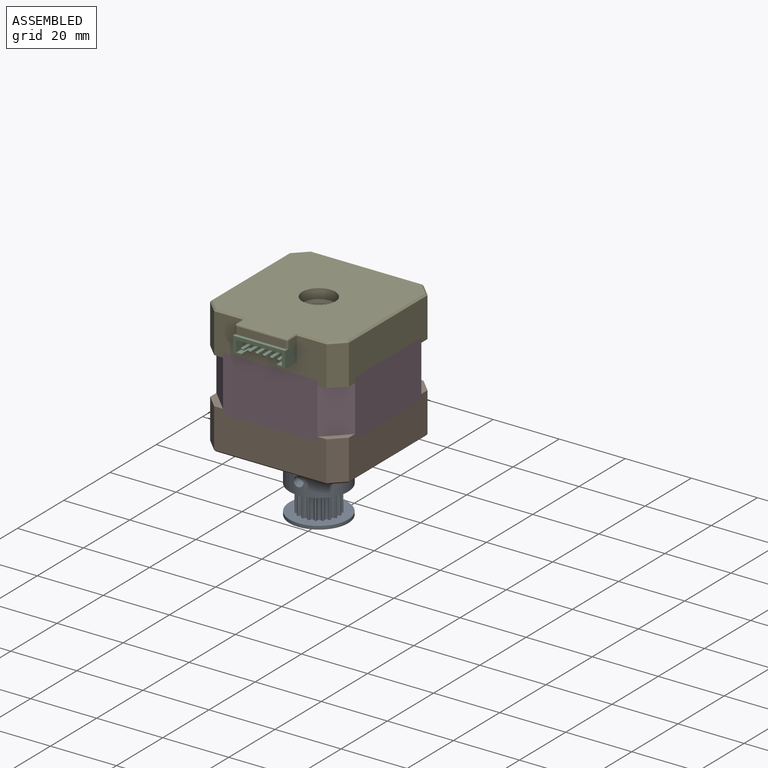
[diagram: assembled view]
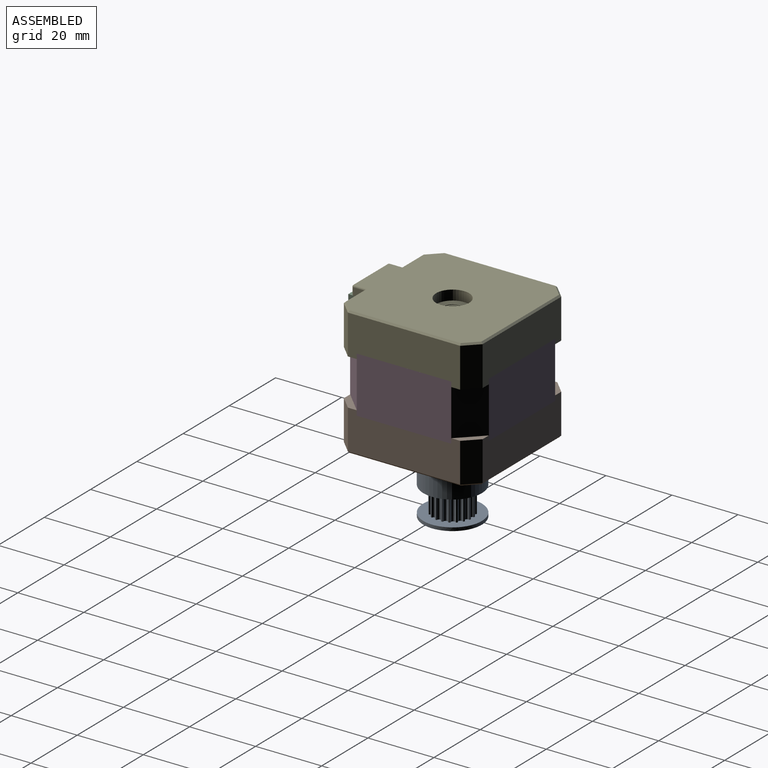
[diagram: assembled view, second angle]
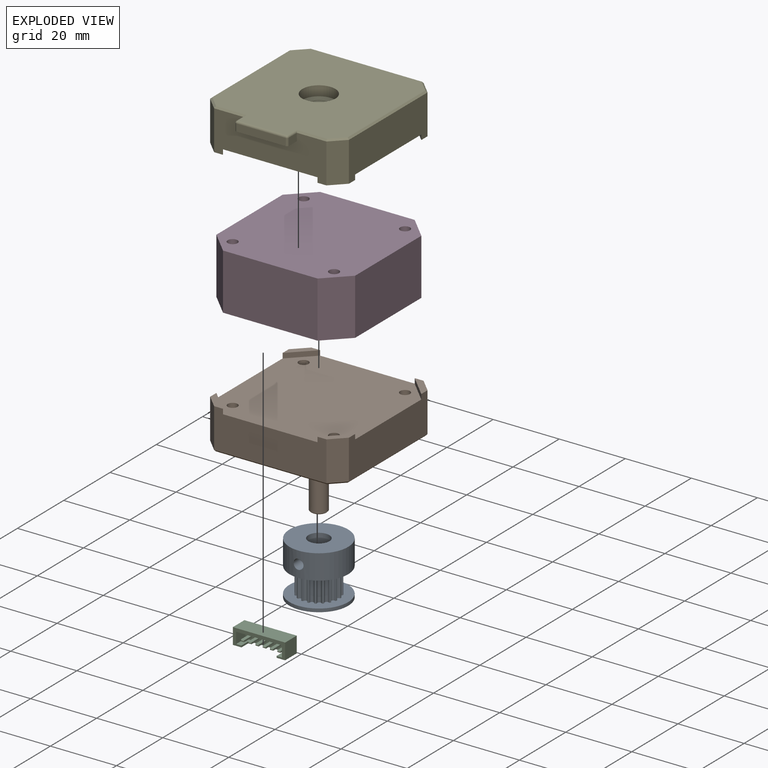
[diagram: exploded view]
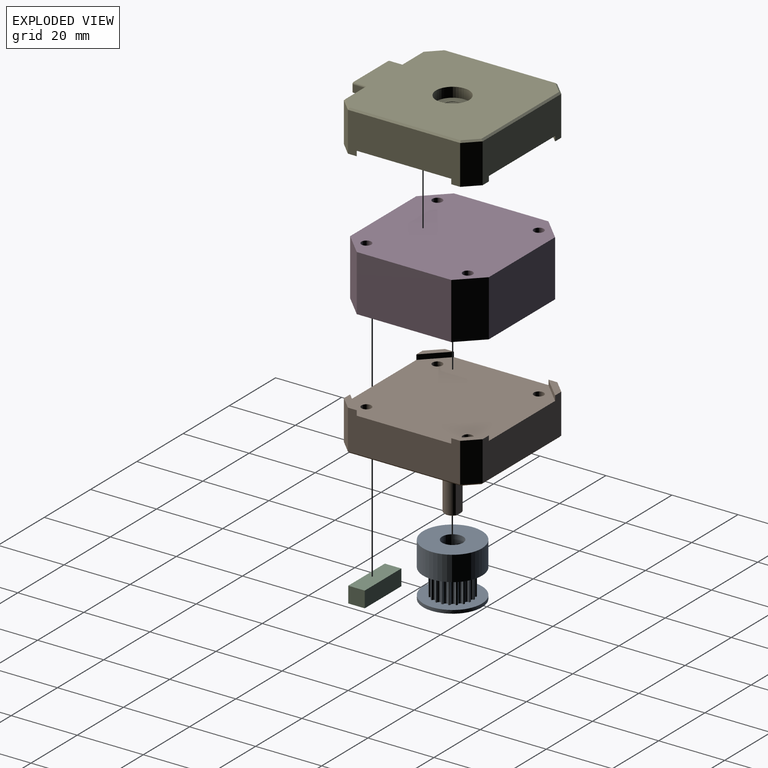
[diagram: exploded view, second angle]
ASSEMBLY  parts=5 mates=11
PART A: 129 faces, bbox 17.8x17.8x16.1 mm
  f0: plane 17.78x17.78mm, normal (0,0,1), area 216.6mm2, adj f1,f32
  f1: cylinder r=3.17mm len=16.13mm, axis (0,0,-1), area 307.2mm2, adj f0,f2,f3,f33
  f2: cylinder r=1.5mm len=6.09mm, axis (0,-1,0), area 55mm2, adj f1,f32
  f3: plane 17.78x17.78mm, normal (0,0,-1), area 216.6mm2, adj f1,f4
  f4: cylinder r=8.89mm len=17.78mm, axis (0,0,-1), area 56.8mm2, adj f3,f5
  f5: plane 17.78x17.78mm, normal (0,0,1), area 148.3mm2, adj f4,f6,f7,f8,f9,f10,f11,f12
  f6: cylinder r=6.08mm len=7.62mm, axis (0,0,-1), area 3.3mm2, adj f5,f26,f31,f43
  f7: cylinder r=6.08mm len=7.62mm, axis (0,0,-1), area 3.3mm2, adj f5,f30,f31,f44
  f8: cylinder r=6.08mm len=7.62mm, axis (0,0,-1), area 3.3mm2, adj f5,f31,f48,f49
  f9: cylinder r=6.08mm len=7.62mm, axis (0,0,-1), area 3.3mm2, adj f5,f31,f53,f54
  f10: cylinder r=6.08mm len=7.62mm, axis (0,0,-1), area 3.3mm2, adj f5,f31,f58,f59
  f11: cylinder r=6.08mm len=7.62mm, axis (0,0,-1), area 3.3mm2, adj f5,f31,f63,f64
  f12: cylinder r=6.08mm len=7.62mm, axis (0,0,-1), area 3.3mm2, adj f5,f31,f68,f69
  f13: cylinder r=6.08mm len=7.62mm, axis (0,0,-1), area 3.3mm2, adj f5,f31,f73,f74
  f14: cylinder r=6.08mm len=7.62mm, axis (0,0,-1), area 3.3mm2, adj f5,f31,f78,f79
  f15: cylinder r=6.08mm len=7.62mm, axis (0,0,-1), area 3.3mm2, adj f5,f31,f83,f84
  f16: cylinder r=6.08mm len=7.62mm, axis (0,0,-1), area 3.3mm2, adj f5,f31,f88,f89
  f17: cylinder r=6.08mm len=7.62mm, axis (0,0,-1), area 3.3mm2, adj f5,f31,f93,f94
  f18: cylinder r=6.08mm len=7.62mm, axis (0,0,-1), area 3.3mm2, adj f5,f31,f98,f99
  f19: cylinder r=6.08mm len=7.62mm, axis (0,0,-1), area 3.3mm2, adj f5,f31,f103,f104
  f20: cylinder r=6.08mm len=7.62mm, axis (0,0,-1), area 3.3mm2, adj f5,f31,f108,f109
  f21: cylinder r=6.08mm len=7.62mm, axis (0,0,-1), area 3.3mm2, adj f5,f31,f113,f114
  f22: cylinder r=6.08mm len=7.62mm, axis (0,0,-1), area 3.3mm2, adj f5,f31,f118,f119
  f23: cylinder r=6.08mm len=7.62mm, axis (0,0,-1), area 3.3mm2, adj f5,f31,f123,f124
  f24: cylinder r=6.08mm len=7.62mm, axis (0,0,-1), area 3.3mm2, adj f5,f31,f38,f39
  f25: cylinder r=6.08mm len=7.62mm, axis (0,0,-1), area 3.3mm2, adj f5,f31,f34,f128
  f26: cylinder r=0.23mm len=7.62mm, axis (0,0,1), area 0.8mm2, adj f5,f6,f27,f31
  f27: cylinder r=0.66mm len=7.62mm, axis (0,0,1), area 1.5mm2, adj f5,f26,f28,f31
  f28: cylinder r=0.61mm len=7.62mm, axis (0,0,1), area 12.6mm2, adj f5,f27,f29,f31
  f29: cylinder r=0.66mm len=7.62mm, axis (0,0,1), area 1.5mm2, adj f5,f28,f30,f31
  f30: cylinder r=0.23mm len=7.62mm, axis (0,0,1), area 0.8mm2, adj f5,f7,f29,f31
  f31: plane 17.78x17.78mm, normal (0,0,-1), area 148.3mm2, adj f6,f7,f8,f9,f10,f11,f12,f13
  f32: cylinder r=8.89mm len=17.78mm, axis (0,0,-1), area 404.4mm2, adj f0,f2,f31,f33
  f33: cylinder r=1.5mm len=6.09mm, axis (-1,0,0), area 55mm2, adj f1,f32
  f34: cylinder r=0.23mm len=7.62mm, axis (0,0,1), area 0.8mm2, adj f5,f25,f31,f35
  f35: cylinder r=0.66mm len=7.62mm, axis (0,0,1), area 1.5mm2, adj f5,f31,f34,f36
  f36: cylinder r=0.61mm len=7.62mm, axis (0,0,1), area 12.6mm2, adj f5,f31,f35,f37
  f37: cylinder r=0.66mm len=7.62mm, axis (0,0,1), area 1.5mm2, adj f5,f31,f36,f38
  f38: cylinder r=0.23mm len=7.62mm, axis (0,0,1), area 0.8mm2, adj f5,f24,f31,f37
  f39: cylinder r=0.23mm len=7.62mm, axis (0,0,1), area 0.8mm2, adj f5,f24,f31,f40
  f40: cylinder r=0.66mm len=7.62mm, axis (0,0,1), area 1.5mm2, adj f5,f31,f39,f41
  f41: cylinder r=0.61mm len=7.62mm, axis (0,0,1), area 12.6mm2, adj f5,f31,f40,f42
  f42: cylinder r=0.66mm len=7.62mm, axis (0,0,1), area 1.5mm2, adj f5,f31,f41,f43
  f43: cylinder r=0.23mm len=7.62mm, axis (0,0,1), area 0.8mm2, adj f5,f6,f31,f42
  f44: cylinder r=0.23mm len=7.62mm, axis (0,0,1), area 0.8mm2, adj f5,f7,f31,f45
  f45: cylinder r=0.66mm len=7.62mm, axis (0,0,1), area 1.5mm2, adj f5,f31,f44,f46
  f46: cylinder r=0.61mm len=7.62mm, axis (0,0,1), area 12.6mm2, adj f5,f31,f45,f47
  f47: cylinder r=0.66mm len=7.62mm, axis (0,0,1), area 1.5mm2, adj f5,f31,f46,f48
  f48: cylinder r=0.23mm len=7.62mm, axis (0,0,1), area 0.8mm2, adj f5,f8,f31,f47
  f49: cylinder r=0.23mm len=7.62mm, axis (0,0,1), area 0.8mm2, adj f5,f8,f31,f50
  f50: cylinder r=0.66mm len=7.62mm, axis (0,0,1), area 1.5mm2, adj f5,f31,f49,f51
  f51: cylinder r=0.61mm len=7.62mm, axis (0,0,1), area 12.6mm2, adj f5,f31,f50,f52
  f52: cylinder r=0.66mm len=7.62mm, axis (0,0,1), area 1.5mm2, adj f5,f31,f51,f53
  f53: cylinder r=0.23mm len=7.62mm, axis (0,0,1), area 0.8mm2, adj f5,f9,f31,f52
  f54: cylinder r=0.23mm len=7.62mm, axis (0,0,1), area 0.8mm2, adj f5,f9,f31,f55
  f55: cylinder r=0.66mm len=7.62mm, axis (0,0,1), area 1.5mm2, adj f5,f31,f54,f56
  f56: cylinder r=0.61mm len=7.62mm, axis (0,0,1), area 12.6mm2, adj f5,f31,f55,f57
  f57: cylinder r=0.66mm len=7.62mm, axis (0,0,1), area 1.5mm2, adj f5,f31,f56,f58
  f58: cylinder r=0.23mm len=7.62mm, axis (0,0,1), area 0.8mm2, adj f5,f10,f31,f57
  f59: cylinder r=0.23mm len=7.62mm, axis (0,0,1), area 0.8mm2, adj f5,f10,f31,f60
  f60: cylinder r=0.66mm len=7.62mm, axis (0,0,1), area 1.5mm2, adj f5,f31,f59,f61
  f61: cylinder r=0.61mm len=7.62mm, axis (0,0,1), area 12.6mm2, adj f5,f31,f60,f62
  f62: cylinder r=0.66mm len=7.62mm, axis (0,0,1), area 1.5mm2, adj f5,f31,f61,f63
  f63: cylinder r=0.23mm len=7.62mm, axis (0,0,1), area 0.8mm2, adj f5,f11,f31,f62
  f64: cylinder r=0.23mm len=7.62mm, axis (0,0,1), area 0.8mm2, adj f5,f11,f31,f65
  f65: cylinder r=0.66mm len=7.62mm, axis (0,0,1), area 1.5mm2, adj f5,f31,f64,f66
  f66: cylinder r=0.61mm len=7.62mm, axis (0,0,1), area 12.6mm2, adj f5,f31,f65,f67
  f67: cylinder r=0.66mm len=7.62mm, axis (0,0,1), area 1.5mm2, adj f5,f31,f66,f68
  f68: cylinder r=0.23mm len=7.62mm, axis (0,0,1), area 0.8mm2, adj f5,f12,f31,f67
  f69: cylinder r=0.23mm len=7.62mm, axis (0,0,1), area 0.8mm2, adj f5,f12,f31,f70
  f70: cylinder r=0.66mm len=7.62mm, axis (0,0,1), area 1.5mm2, adj f5,f31,f69,f71
  f71: cylinder r=0.61mm len=7.62mm, axis (0,0,1), area 12.6mm2, adj f5,f31,f70,f72
  f72: cylinder r=0.66mm len=7.62mm, axis (0,0,1), area 1.5mm2, adj f5,f31,f71,f73
  f73: cylinder r=0.23mm len=7.62mm, axis (0,0,1), area 0.8mm2, adj f5,f13,f31,f72
  f74: cylinder r=0.23mm len=7.62mm, axis (0,0,1), area 0.8mm2, adj f5,f13,f31,f75
  f75: cylinder r=0.66mm len=7.62mm, axis (0,0,1), area 1.5mm2, adj f5,f31,f74,f76
  f76: cylinder r=0.61mm len=7.62mm, axis (0,0,1), area 12.6mm2, adj f5,f31,f75,f77
  f77: cylinder r=0.66mm len=7.62mm, axis (0,0,1), area 1.5mm2, adj f5,f31,f76,f78
  f78: cylinder r=0.23mm len=7.62mm, axis (0,0,1), area 0.8mm2, adj f5,f14,f31,f77
  f79: cylinder r=0.23mm len=7.62mm, axis (0,0,1), area 0.8mm2, adj f5,f14,f31,f80
  f80: cylinder r=0.66mm len=7.62mm, axis (0,0,1), area 1.5mm2, adj f5,f31,f79,f81
  f81: cylinder r=0.61mm len=7.62mm, axis (0,0,1), area 12.6mm2, adj f5,f31,f80,f82
  f82: cylinder r=0.66mm len=7.62mm, axis (0,0,1), area 1.5mm2, adj f5,f31,f81,f83
  f83: cylinder r=0.23mm len=7.62mm, axis (0,0,1), area 0.8mm2, adj f5,f15,f31,f82
  f84: cylinder r=0.23mm len=7.62mm, axis (0,0,1), area 0.8mm2, adj f5,f15,f31,f85
  f85: cylinder r=0.66mm len=7.62mm, axis (0,0,1), area 1.5mm2, adj f5,f31,f84,f86
  f86: cylinder r=0.61mm len=7.62mm, axis (0,0,1), area 12.6mm2, adj f5,f31,f85,f87
  f87: cylinder r=0.66mm len=7.62mm, axis (0,0,1), area 1.5mm2, adj f5,f31,f86,f88
  f88: cylinder r=0.23mm len=7.62mm, axis (0,0,1), area 0.8mm2, adj f5,f16,f31,f87
  f89: cylinder r=0.23mm len=7.62mm, axis (0,0,1), area 0.8mm2, adj f5,f16,f31,f90
  f90: cylinder r=0.66mm len=7.62mm, axis (0,0,1), area 1.5mm2, adj f5,f31,f89,f91
  f91: cylinder r=0.61mm len=7.62mm, axis (0,0,1), area 12.6mm2, adj f5,f31,f90,f92
  f92: cylinder r=0.66mm len=7.62mm, axis (0,0,1), area 1.5mm2, adj f5,f31,f91,f93
  f93: cylinder r=0.23mm len=7.62mm, axis (0,0,1), area 0.8mm2, adj f5,f17,f31,f92
  f94: cylinder r=0.23mm len=7.62mm, axis (0,0,1), area 0.8mm2, adj f5,f17,f31,f95
  f95: cylinder r=0.66mm len=7.62mm, axis (0,0,1), area 1.5mm2, adj f5,f31,f94,f96
  f96: cylinder r=0.61mm len=7.62mm, axis (0,0,1), area 12.6mm2, adj f5,f31,f95,f97
  f97: cylinder r=0.66mm len=7.62mm, axis (0,0,1), area 1.5mm2, adj f5,f31,f96,f98
  f98: cylinder r=0.23mm len=7.62mm, axis (0,0,1), area 0.8mm2, adj f5,f18,f31,f97
  f99: cylinder r=0.23mm len=7.62mm, axis (0,0,1), area 0.8mm2, adj f5,f18,f31,f100
  f100: cylinder r=0.66mm len=7.62mm, axis (0,0,1), area 1.5mm2, adj f5,f31,f99,f101
  f101: cylinder r=0.61mm len=7.62mm, axis (0,0,1), area 12.6mm2, adj f5,f31,f100,f102
  f102: cylinder r=0.66mm len=7.62mm, axis (0,0,1), area 1.5mm2, adj f5,f31,f101,f103
  f103: cylinder r=0.23mm len=7.62mm, axis (0,0,1), area 0.8mm2, adj f5,f19,f31,f102
  f104: cylinder r=0.23mm len=7.62mm, axis (0,0,1), area 0.8mm2, adj f5,f19,f31,f105
  f105: cylinder r=0.66mm len=7.62mm, axis (0,0,1), area 1.5mm2, adj f5,f31,f104,f106
  f106: cylinder r=0.61mm len=7.62mm, axis (0,0,1), area 12.6mm2, adj f5,f31,f105,f107
  f107: cylinder r=0.66mm len=7.62mm, axis (0,0,1), area 1.5mm2, adj f5,f31,f106,f108
  f108: cylinder r=0.23mm len=7.62mm, axis (0,0,1), area 0.8mm2, adj f5,f20,f31,f107
  f109: cylinder r=0.23mm len=7.62mm, axis (0,0,1), area 0.8mm2, adj f5,f20,f31,f110
  f110: cylinder r=0.66mm len=7.62mm, axis (0,0,1), area 1.5mm2, adj f5,f31,f109,f111
  f111: cylinder r=0.61mm len=7.62mm, axis (0,0,1), area 12.6mm2, adj f5,f31,f110,f112
  f112: cylinder r=0.66mm len=7.62mm, axis (0,0,1), area 1.5mm2, adj f5,f31,f111,f113
  f113: cylinder r=0.23mm len=7.62mm, axis (0,0,1), area 0.8mm2, adj f5,f21,f31,f112
  f114: cylinder r=0.23mm len=7.62mm, axis (0,0,1), area 0.8mm2, adj f5,f21,f31,f115
  f115: cylinder r=0.66mm len=7.62mm, axis (0,0,1), area 1.5mm2, adj f5,f31,f114,f116
  f116: cylinder r=0.61mm len=7.62mm, axis (0,0,1), area 12.6mm2, adj f5,f31,f115,f117
  f117: cylinder r=0.66mm len=7.62mm, axis (0,0,1), area 1.5mm2, adj f5,f31,f116,f118
  f118: cylinder r=0.23mm len=7.62mm, axis (0,0,1), area 0.8mm2, adj f5,f22,f31,f117
  f119: cylinder r=0.23mm len=7.62mm, axis (0,0,1), area 0.8mm2, adj f5,f22,f31,f120
  f120: cylinder r=0.66mm len=7.62mm, axis (0,0,1), area 1.5mm2, adj f5,f31,f119,f121
  f121: cylinder r=0.61mm len=7.62mm, axis (0,0,1), area 12.6mm2, adj f5,f31,f120,f122
  f122: cylinder r=0.66mm len=7.62mm, axis (0,0,1), area 1.5mm2, adj f5,f31,f121,f123
  f123: cylinder r=0.23mm len=7.62mm, axis (0,0,1), area 0.8mm2, adj f5,f23,f31,f122
  f124: cylinder r=0.23mm len=7.62mm, axis (0,0,1), area 0.8mm2, adj f5,f23,f31,f125
  f125: cylinder r=0.66mm len=7.62mm, axis (0,0,1), area 1.5mm2, adj f5,f31,f124,f126
  f126: cylinder r=0.61mm len=7.62mm, axis (0,0,1), area 12.6mm2, adj f5,f31,f125,f127
  f127: cylinder r=0.66mm len=7.62mm, axis (0,0,1), area 1.5mm2, adj f5,f31,f126,f128
  f128: cylinder r=0.23mm len=7.62mm, axis (0,0,1), area 0.8mm2, adj f5,f25,f31,f127
PART B: 41 faces, bbox 42x42x32 mm
  f0: plane 34x12mm, normal (1,0,0), area 365.1mm2, adj f5,f6,f11,f12,f21,f36,f38,f39
  f1: plane 34x12mm, normal (0,1,0), area 365.1mm2, adj f6,f7,f12,f13,f20,f36,f37,f38
  f2: plane 34x12mm, normal (-1,0,0), area 365.1mm2, adj f4,f7,f13,f14,f16,f36,f37,f40
  f3: plane 34x12mm, normal (0,-1,0), area 365.1mm2, adj f4,f5,f11,f14,f17,f36,f39,f40
  f4: plane 6.69x6.69mm, normal (0,0,1), area 14.4mm2, adj f2,f3,f14,f40
  f5: plane 6.69x6.69mm, normal (0,0,1), area 14.4mm2, adj f0,f3,f11,f39
  f6: plane 6.69x6.69mm, normal (0,0,1), area 14.4mm2, adj f0,f1,f12,f38
  f7: plane 6.69x6.69mm, normal (0,0,1), area 14.4mm2, adj f1,f2,f13,f37
  f8: plane 9.5x9.5mm, normal (0,0,-1), area 51.2mm2, adj f26,f27
  f9: plane 28x28mm, normal (0,0,-1), area 235.6mm2, adj f23,f25
  f10: plane 41x41mm, normal (0,0,-1), area 964.7mm2, adj f15,f16,f17,f18,f19,f20,f21,f22
  f11: plane 12x4mm, normal (0.71,-0.71,0), area 67.9mm2, adj f0,f3,f5,f19
  f12: plane 12x4mm, normal (0.71,0.71,0), area 67.9mm2, adj f0,f1,f6,f22
  f13: plane 12x4mm, normal (-0.71,0.71,0), area 67.9mm2, adj f1,f2,f7,f18
  f14: plane 12x4mm, normal (-0.71,-0.71,0), area 67.9mm2, adj f2,f3,f4,f15
  f15: plane 4.21x4.21mm, normal (-0.5,-0.5,-0.71), area 3.9mm2, adj f10,f14,f16,f17
  f16: plane 34x0.5mm, normal (-0.71,0,-0.71), area 23.9mm2, adj f2,f10,f15,f18
  f17: plane 34x0.5mm, normal (0,-0.71,-0.71), area 23.9mm2, adj f3,f10,f15,f19
  f18: plane 4.21x4.21mm, normal (-0.5,0.5,-0.71), area 3.9mm2, adj f10,f13,f16,f20
  f19: plane 4.21x4.21mm, normal (0.5,-0.5,-0.71), area 3.9mm2, adj f10,f11,f17,f21
  f20: plane 34x0.5mm, normal (0,0.71,-0.71), area 23.9mm2, adj f1,f10,f18,f22
  f21: plane 34x0.5mm, normal (0.71,0,-0.71), area 23.9mm2, adj f0,f10,f19,f22
  f22: plane 4.21x4.21mm, normal (0.5,0.5,-0.71), area 3.9mm2, adj f10,f12,f20,f21
  f23: cone r=14mm half-angle=45deg, axis (0,0,-1), area 63.3mm2, adj f9,f10
  f24: plane 22x22mm, normal (0,0,-1), area 309.3mm2, adj f25,f26
  f25: cylinder r=11mm len=22mm, axis (0,0,1), area 172.8mm2, adj f9,f24
  f26: cylinder r=4.75mm len=9.5mm, axis (0,0,1), area 74.6mm2, adj f8,f24
  f27: cylinder r=2.5mm len=19.75mm, axis (0,0,1), area 254.7mm2, adj f8,f29,f30,f31
  f28: plane 4.5x4.25mm, normal (0,0,-1), area 15.6mm2, adj f29,f31
  f29: cone r=2.25mm half-angle=45deg, axis (0,0,1), area 4.3mm2, adj f27,f28,f31
  f30: plane 3x0.5mm, normal (0,0,-1), area 1mm2, adj f27,f31
  f31: plane 17.53x3.03mm, normal (0,1,0), area 52.4mm2, adj f27,f28,f29,f30
  f32: cylinder r=1.5mm len=11mm, axis (0,0,-1), area 103.7mm2, adj f10,f36
  f33: cylinder r=1.5mm len=11mm, axis (0,0,-1), area 103.7mm2, adj f10,f36
  f34: cylinder r=1.5mm len=11mm, axis (0,0,-1), area 103.7mm2, adj f10,f36
  f35: cylinder r=1.5mm len=11mm, axis (0,0,-1), area 103.7mm2, adj f10,f36
  f36: plane 42x42mm, normal (0,0,1), area 1646.3mm2, adj f0,f1,f2,f3,f32,f33,f34,f35
  f37: plane 6.69x6.69mm, normal (0.71,-0.71,0), area 14.2mm2, adj f1,f2,f7,f36
  f38: plane 6.69x6.69mm, normal (-0.71,-0.71,0), area 14.2mm2, adj f0,f1,f6,f36
  f39: plane 6.69x6.69mm, normal (-0.71,0.71,0), area 14.2mm2, adj f0,f3,f5,f36
  f40: plane 6.69x6.69mm, normal (0.71,0.71,0), area 14.2mm2, adj f2,f3,f4,f36
PART C: 68 faces, bbox 15.8x5x4.9 mm
  f0: plane 15.82x5mm, normal (0,0,1), area 79.1mm2, adj f1,f10,f11,f12
  f1: plane 5x4.85mm, normal (-1,0,0), area 24.3mm2, adj f0,f9,f11,f12
  f2: plane 4x0.5mm, normal (1,0,0), area 2mm2, adj f3,f9,f11,f13
  f3: plane 4x1.6mm, normal (0,0,1), area 6.4mm2, adj f2,f4,f11,f13
  f4: plane 4x3.35mm, normal (1,0,0), area 13.4mm2, adj f3,f5,f11,f13
  f5: plane 13.82x4mm, normal (0,0,-1), area 55.3mm2, adj f4,f6,f11,f13
  f6: plane 4x3.35mm, normal (-1,0,0), area 13.4mm2, adj f5,f7,f11,f13
  f7: plane 4x1.6mm, normal (0,0,1), area 6.4mm2, adj f6,f8,f11,f13
  f8: plane 4x0.5mm, normal (-1,0,0), area 2mm2, adj f7,f9,f11,f13
  f9: plane 15.82x5mm, normal (0,0,-1), area 36.6mm2, adj f1,f2,f8,f10,f11,f12,f13
  f10: plane 5x4.85mm, normal (1,0,0), area 24.3mm2, adj f0,f9,f11,f12
  f11: plane 15.82x4.85mm, normal (0,-1,0), area 25.1mm2, adj f0,f1,f2,f3,f4,f5,f6,f7
  f12: plane 15.82x4.85mm, normal (0,1,0), area 76.8mm2, adj f0,f1,f9,f10
  f13: plane 13.82x3.85mm, normal (0,-1,0), area 48.7mm2, adj f2,f3,f4,f5,f6,f7,f8,f9
  f14: plane 3.3x1mm, normal (0,0,1), area 3.3mm2, adj f13,f15,f17,f65
  f15: plane 3.3x0.5mm, normal (-1,0,0), area 1.6mm2, adj f13,f14,f16,f64
  f16: plane 3.3x1mm, normal (0,0,-1), area 3.3mm2, adj f13,f15,f17,f66
  f17: plane 3.3x0.5mm, normal (1,0,0), area 1.6mm2, adj f13,f14,f16,f67
  f18: plane 0.6x0.1mm, normal (0,-1,0), area 0.1mm2, adj f64,f65,f66,f67
  f19: plane 3.3x1mm, normal (0,0,1), area 3.3mm2, adj f13,f20,f22,f61
  f20: plane 3.3x0.5mm, normal (-1,0,0), area 1.6mm2, adj f13,f19,f21,f63
  f21: plane 3.3x1mm, normal (0,0,-1), area 3.3mm2, adj f13,f20,f22,f62
  f22: plane 3.3x0.5mm, normal (1,0,0), area 1.6mm2, adj f13,f19,f21,f60
  f23: plane 0.6x0.1mm, normal (0,-1,0), area 0.1mm2, adj f60,f61,f62,f63
  f24: plane 3.3x1mm, normal (0,0,1), area 3.3mm2, adj f13,f25,f27,f57
  f25: plane 3.3x0.5mm, normal (-1,0,0), area 1.6mm2, adj f13,f24,f26,f59
  f26: plane 3.3x1mm, normal (0,0,-1), area 3.3mm2, adj f13,f25,f27,f58
  f27: plane 3.3x0.5mm, normal (1,0,0), area 1.6mm2, adj f13,f24,f26,f56
  f28: plane 0.6x0.1mm, normal (0,-1,0), area 0.1mm2, adj f56,f57,f58,f59
  f29: plane 3.3x1mm, normal (0,0,1), area 3.3mm2, adj f13,f30,f32,f53
  f30: plane 3.3x0.5mm, normal (-1,0,0), area 1.6mm2, adj f13,f29,f31,f55
  f31: plane 3.3x1mm, normal (0,0,-1), area 3.3mm2, adj f13,f30,f32,f54
  f32: plane 3.3x0.5mm, normal (1,0,0), area 1.6mm2, adj f13,f29,f31,f52
  f33: plane 0.6x0.1mm, normal (0,-1,0), area 0.1mm2, adj f52,f53,f54,f55
  f34: plane 3.3x1mm, normal (0,0,1), area 3.3mm2, adj f13,f35,f37,f49
  f35: plane 3.3x0.5mm, normal (-1,0,0), area 1.6mm2, adj f13,f34,f36,f51
  f36: plane 3.3x1mm, normal (0,0,-1), area 3.3mm2, adj f13,f35,f37,f50
  f37: plane 3.3x0.5mm, normal (1,0,0), area 1.6mm2, adj f13,f34,f36,f48
  f38: plane 0.6x0.1mm, normal (0,-1,0), area 0.1mm2, adj f48,f49,f50,f51
  f39: plane 3.3x1mm, normal (0,0,1), area 3.3mm2, adj f13,f40,f42,f45
  f40: plane 3.3x0.5mm, normal (-1,0,0), area 1.6mm2, adj f13,f39,f41,f47
  f41: plane 3.3x1mm, normal (0,0,-1), area 3.3mm2, adj f13,f40,f42,f46
  f42: plane 3.3x0.5mm, normal (1,0,0), area 1.6mm2, adj f13,f39,f41,f44
  f43: plane 0.6x0.1mm, normal (0,-1,0), area 0.1mm2, adj f44,f45,f46,f47
  f44: plane 0.5x0.2mm, normal (0.71,-0.71,0), area 0.1mm2, adj f42,f43,f45,f46
  f45: plane 1x0.2mm, normal (0,-0.71,0.71), area 0.2mm2, adj f39,f43,f44,f47
  f46: plane 1x0.2mm, normal (0,-0.71,-0.71), area 0.2mm2, adj f41,f43,f44,f47
  f47: plane 0.5x0.2mm, normal (-0.71,-0.71,0), area 0.1mm2, adj f40,f43,f45,f46
  f48: plane 0.5x0.2mm, normal (0.71,-0.71,0), area 0.1mm2, adj f37,f38,f49,f50
  f49: plane 1x0.2mm, normal (0,-0.71,0.71), area 0.2mm2, adj f34,f38,f48,f51
  f50: plane 1x0.2mm, normal (0,-0.71,-0.71), area 0.2mm2, adj f36,f38,f48,f51
  f51: plane 0.5x0.2mm, normal (-0.71,-0.71,0), area 0.1mm2, adj f35,f38,f49,f50
  f52: plane 0.5x0.2mm, normal (0.71,-0.71,0), area 0.1mm2, adj f32,f33,f53,f54
  f53: plane 1x0.2mm, normal (0,-0.71,0.71), area 0.2mm2, adj f29,f33,f52,f55
  f54: plane 1x0.2mm, normal (0,-0.71,-0.71), area 0.2mm2, adj f31,f33,f52,f55
  f55: plane 0.5x0.2mm, normal (-0.71,-0.71,0), area 0.1mm2, adj f30,f33,f53,f54
  f56: plane 0.5x0.2mm, normal (0.71,-0.71,0), area 0.1mm2, adj f27,f28,f57,f58
  f57: plane 1x0.2mm, normal (0,-0.71,0.71), area 0.2mm2, adj f24,f28,f56,f59
  f58: plane 1x0.2mm, normal (0,-0.71,-0.71), area 0.2mm2, adj f26,f28,f56,f59
  f59: plane 0.5x0.2mm, normal (-0.71,-0.71,0), area 0.1mm2, adj f25,f28,f57,f58
  f60: plane 0.5x0.2mm, normal (0.71,-0.71,0), area 0.1mm2, adj f22,f23,f61,f62
  f61: plane 1x0.2mm, normal (0,-0.71,0.71), area 0.2mm2, adj f19,f23,f60,f63
  f62: plane 1x0.2mm, normal (0,-0.71,-0.71), area 0.2mm2, adj f21,f23,f60,f63
  f63: plane 0.5x0.2mm, normal (-0.71,-0.71,0), area 0.1mm2, adj f20,f23,f61,f62
  f64: plane 0.5x0.2mm, normal (-0.71,-0.71,0), area 0.1mm2, adj f15,f18,f65,f66
  f65: plane 1x0.2mm, normal (0,-0.71,0.71), area 0.2mm2, adj f14,f18,f64,f67
  f66: plane 1x0.2mm, normal (0,-0.71,-0.71), area 0.2mm2, adj f16,f18,f64,f67
  f67: plane 0.5x0.2mm, normal (0.71,-0.71,0), area 0.1mm2, adj f17,f18,f65,f66
PART D: 14 faces, bbox 42x42x17 mm
  f0: plane 17x6.69mm, normal (0.71,0.71,0), area 160.8mm2, adj f1,f10,f12,f13
  f1: plane 28.63x17mm, normal (0,1,0), area 486.6mm2, adj f0,f2,f12,f13
  f2: plane 17x6.69mm, normal (-0.71,0.71,0), area 160.8mm2, adj f1,f3,f12,f13
  f3: plane 28.63x17mm, normal (-1,0,0), area 486.6mm2, adj f2,f4,f12,f13
  f4: plane 17x6.69mm, normal (-0.71,-0.71,0), area 160.8mm2, adj f3,f5,f12,f13
  f5: plane 28.63x17mm, normal (0,-1,0), area 486.6mm2, adj f4,f6,f12,f13
  f6: plane 17x6.69mm, normal (0.71,-0.71,0), area 160.8mm2, adj f5,f10,f12,f13
  f7: cylinder r=1.5mm len=17mm, axis (0,0,-1), area 160.2mm2, adj f12,f13
  f8: cylinder r=1.5mm len=17mm, axis (0,0,-1), area 160.2mm2, adj f12,f13
  f9: cylinder r=1.5mm len=17mm, axis (0,0,-1), area 160.2mm2, adj f12,f13
  f10: plane 28.63x17mm, normal (1,0,0), area 486.6mm2, adj f0,f6,f12,f13
  f11: cylinder r=1.5mm len=17mm, axis (0,0,-1), area 160.2mm2, adj f12,f13
  f12: plane 42x42mm, normal (0,0,1), area 1646.3mm2, adj f0,f1,f2,f3,f4,f5,f6,f7
  f13: plane 42x42mm, normal (0,0,-1), area 1646.3mm2, adj f0,f1,f2,f3,f4,f5,f6,f7
PART E: 44 faces, bbox 42x46x12.5 mm
  f0: plane 9.6x0.5mm, normal (0,-0.71,0.71), area 6.4mm2, adj f1,f8,f9,f43
  f1: plane 34x12mm, normal (0,-1,0), area 328.3mm2, adj f0,f14,f17,f18,f21,f25,f27,f29
  f2: plane 5x5mm, normal (0,0,1), area 19.6mm2, adj f3
  f3: cylinder r=2.5mm len=5mm, axis (0,0,-1), area 1.6mm2, adj f2,f4
  f4: plane 9.3x9.3mm, normal (0,0,1), area 48.3mm2, adj f3,f5
  f5: cylinder r=4.65mm len=9.3mm, axis (0,0,-1), area 2.9mm2, adj f4,f6
  f6: plane 10x10mm, normal (0,0,1), area 10.6mm2, adj f5,f7
  f7: cylinder r=5mm len=10mm, axis (0,0,1), area 94.2mm2, adj f6,f8
  f8: plane 44.9x41mm, normal (0,0,1), area 1632.7mm2, adj f0,f7,f9,f10,f11,f12,f13,f14
  f9: plane 4.21x4.21mm, normal (-0.5,-0.5,0.71), area 3.9mm2, adj f0,f8,f15,f17
  f10: plane 4.21x4.21mm, normal (0.5,-0.5,0.71), area 3.9mm2, adj f8,f13,f14,f18
  f11: plane 4.21x4.21mm, normal (0.5,0.5,0.71), area 3.9mm2, adj f8,f13,f16,f19
  f12: plane 4.21x4.21mm, normal (-0.5,0.5,0.71), area 3.9mm2, adj f8,f15,f16,f20
  f13: plane 34x0.5mm, normal (0.71,0,0.71), area 23.9mm2, adj f8,f10,f11,f28
  f14: plane 9.6x0.5mm, normal (0,-0.71,0.71), area 6.4mm2, adj f1,f8,f10,f37
  f15: plane 34x0.5mm, normal (-0.71,0,0.71), area 23.9mm2, adj f8,f9,f12,f26
  f16: plane 34x0.5mm, normal (0,0.71,0.71), area 23.9mm2, adj f8,f11,f12,f24
  f17: plane 12x4mm, normal (-0.71,-0.71,0), area 67.9mm2, adj f1,f9,f25,f26
  f18: plane 12x4mm, normal (0.71,-0.71,0), area 67.9mm2, adj f1,f10,f27,f28
  f19: plane 12x4mm, normal (0.71,0.71,0), area 67.9mm2, adj f11,f22,f24,f28
  f20: plane 12x4mm, normal (-0.71,0.71,0), area 67.9mm2, adj f12,f23,f24,f26
  f21: plane 42x42mm, normal (0,0,-1), area 1674.6mm2, adj f1,f24,f26,f28,f29,f30,f31,f32
  f22: plane 6.69x6.69mm, normal (0,0,-1), area 14.4mm2, adj f19,f24,f28,f31
  f23: plane 6.69x6.69mm, normal (0,0,-1), area 14.4mm2, adj f20,f24,f26,f32
  f24: plane 34x12mm, normal (0,1,0), area 365.1mm2, adj f16,f19,f20,f21,f22,f23,f31,f32
  f25: plane 6.69x6.69mm, normal (0,0,-1), area 14.4mm2, adj f1,f17,f26,f29
  f26: plane 34x12mm, normal (-1,0,0), area 365.1mm2, adj f15,f17,f20,f21,f23,f25,f29,f32
  f27: plane 6.69x6.69mm, normal (0,0,-1), area 14.4mm2, adj f1,f18,f28,f30
  f28: plane 34x12mm, normal (1,0,0), area 365.1mm2, adj f13,f18,f19,f21,f22,f27,f30,f31
  f29: plane 6.69x6.69mm, normal (0.71,0.71,0), area 14.2mm2, adj f1,f21,f25,f26
  f30: plane 6.69x6.69mm, normal (-0.71,0.71,0), area 14.2mm2, adj f1,f21,f27,f28
  f31: plane 6.69x6.69mm, normal (-0.71,-0.71,0), area 14.2mm2, adj f21,f22,f24,f28
  f32: plane 6.69x6.69mm, normal (0.71,-0.71,0), area 14.2mm2, adj f21,f23,f24,f26
  f33: plane 16x4mm, normal (0,0,-1), area 63.8mm2, adj f1,f34,f35,f36,f38,f41
  f34: plane 3.4x2.2mm, normal (-1,0,0), area 7.5mm2, adj f1,f33,f41,f43
  f35: plane 3.4x2.2mm, normal (1,0,0), area 7.5mm2, adj f1,f33,f37,f38
  f36: plane 14.8x2.2mm, normal (0,-1,0), area 32.6mm2, adj f33,f38,f40,f41
  f37: cylinder r=0.6mm len=3.9mm, axis (0,1,0), area 3.5mm2, adj f1,f8,f14,f35,f39
  f38: cylinder r=0.6mm len=2.2mm, axis (0,0,-1), area 2.1mm2, adj f33,f35,f36,f39
  f39: sphere r=0.6mm, area 0.6mm2, adj f37,f38,f40
  f40: cylinder r=0.6mm len=14.8mm, axis (1,0,0), area 13.9mm2, adj f8,f36,f39,f42
  f41: cylinder r=0.6mm len=2.2mm, axis (0,0,1), area 2.1mm2, adj f33,f34,f36,f42
  f42: sphere r=0.6mm, area 0.6mm2, adj f40,f41,f43
  f43: cylinder r=0.6mm len=3.9mm, axis (0,-1,0), area 3.5mm2, adj f0,f1,f8,f34,f42
PLACE A t=(-7.57,-101.67,-3.85)mm
PLACE B t=(-7.57,-101.67,8.14)mm
PLACE C t=(-7.48,-101.67,8.14)mm
PLACE D t=(-7.57,-101.67,8.14)mm
PLACE E t=(-7.57,-101.67,8.14)mm
MATE planar E.f26 <-> D.f3  axis (-1,0,0) through (-28.57,-101.67,41.26)mm
MATE planar D.f12 <-> E.f21  axis (0,0,1) through (-28.57,-101.67,36.14)mm
MATE planar D.f5 <-> E.f1  axis (0,-1,0) through (-21.89,-122.67,27.64)mm
MATE planar D.f13 <-> B.f36  axis (0,0,-1) through (-7.57,-101.67,19.14)mm
MATE planar E.f1 <-> C.f12  axis (0,-1,0) through (-7.57,-122.67,40.78)mm
MATE planar B.f23 <-> A.f1  axis (0,0,-1) through (-7.57,-101.67,6.14)mm
MATE cylindrical A.f1 <-> B.f23  axis (0,0,-1) through (-7.57,-101.67,-4.42)mm
MATE planar E.f35 <-> C.f10  axis (1,0,0) through (0.43,-124.37,45.44)mm
MATE planar D.f3 <-> B.f2  axis (-1,0,0) through (-28.57,-101.67,27.64)mm
MATE planar E.f33 <-> C.f0  axis (0,0,-1) through (-7.57,-124.66,44.34)mm
MATE planar D.f5 <-> B.f3  axis (0,-1,0) through (-7.57,-122.67,27.64)mm
